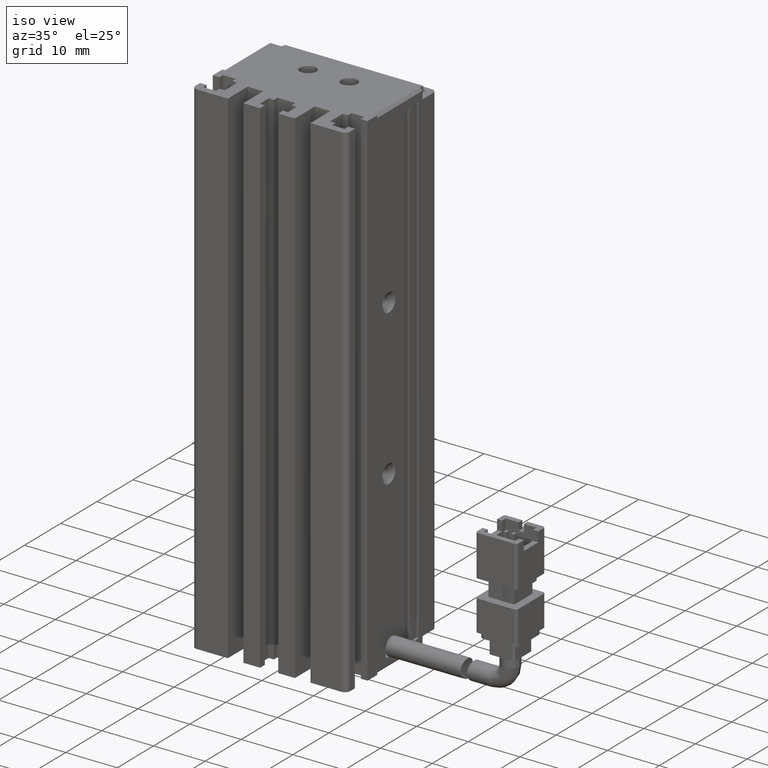
[diagram: clean part render]
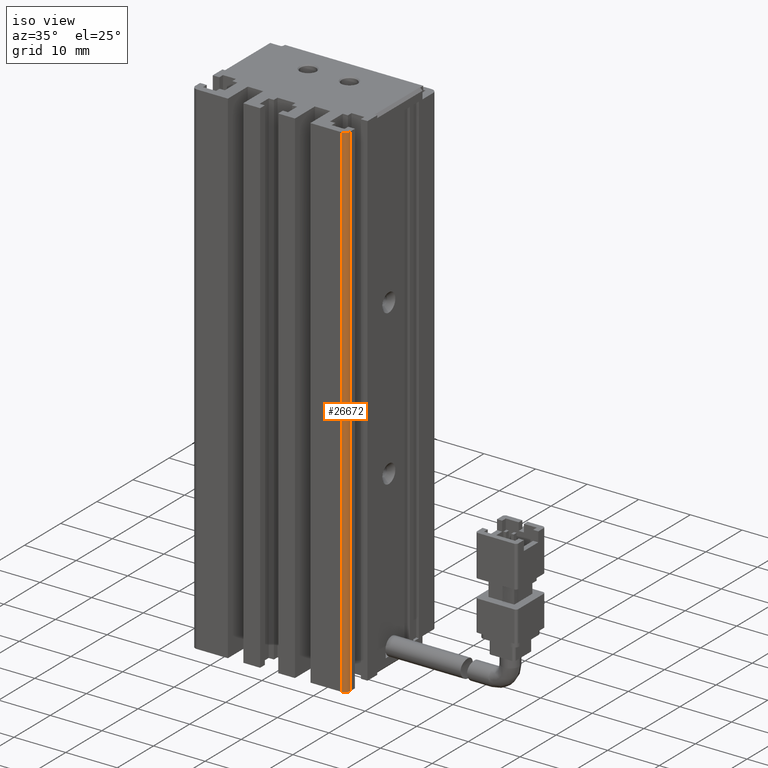
[diagram: same view with one face highlighted and labeled with its STEP entity id]
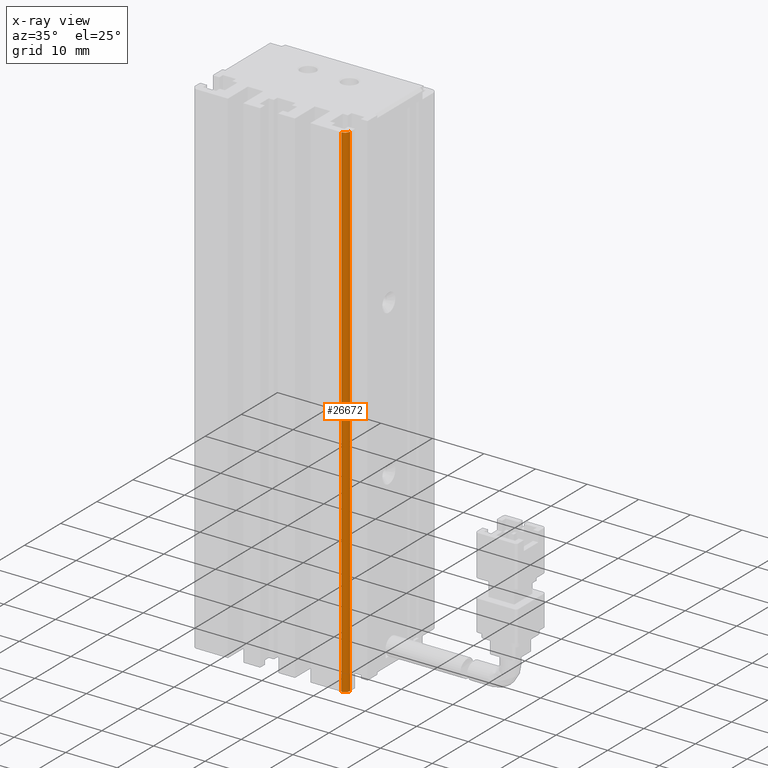
[diagram: x-ray of the same camera — body ghosted, the highlighted face saturated]
A machine part, iso view. The second image highlights one B-rep face of the part: STEP entity #26672.
The next image is the same camera in x-ray: the body ghosted, the highlighted face saturated — about 0% of this face is hidden behind the body in this view.
In plain terms, the highlighted cylindrical surface (edge-blend (fillet) strip) has radius 1 mm, axis along (-0, -0, -1).
Its self-contained STEP definition (entity closure, byte-faithful):
#1813 = VECTOR ( 'NONE', #10361, 1000.000000000000000 ) ;
#1869 = VERTEX_POINT ( 'NONE', #7064 ) ;
#2635 = ORIENTED_EDGE ( 'NONE', *, *, #29548, .T. ) ;
#5167 = CIRCLE ( 'NONE', #13048, 1.000000000000000900 ) ;
#5498 = VERTEX_POINT ( 'NONE', #14972 ) ;
#6105 = EDGE_CURVE ( 'NONE', #15011, #23882, #20256, .T. ) ;
#7064 = CARTESIAN_POINT ( 'NONE',  ( 55.92537974683542500, 11.69594479660387000, -66.00000000000000000 ) ) ;
#9187 = DIRECTION ( 'NONE',  ( -0.0000000000000000000, -0.0000000000000000000, -1.000000000000000000 ) ) ;
#10361 = DIRECTION ( 'NONE',  ( -0.0000000000000000000, -0.0000000000000000000, -1.000000000000000000 ) ) ;
#10416 = ORIENTED_EDGE ( 'NONE', *, *, #6105, .T. ) ;
#10991 = CARTESIAN_POINT ( 'NONE',  ( 54.92537974683542500, 10.69594479660386800, -66.00000000000000000 ) ) ;
#12926 = DIRECTION ( 'NONE',  ( 0.0000000000000000000, 0.0000000000000000000, 1.000000000000000000 ) ) ;
#13048 = AXIS2_PLACEMENT_3D ( 'NONE', #27346, #12926, #29794 ) ;
#13329 = FACE_OUTER_BOUND ( 'NONE', #24192, .T. ) ;
#14972 = CARTESIAN_POINT ( 'NONE',  ( 55.92537974683542500, 11.69594479660387000, -164.0000000000000000 ) ) ;
#15011 = VERTEX_POINT ( 'NONE', #10991 ) ;
#15373 = ORIENTED_EDGE ( 'NONE', *, *, #29705, .T. ) ;
#15943 = CYLINDRICAL_SURFACE ( 'NONE', #30397, 1.000000000000000900 ) ;
#16421 = DIRECTION ( 'NONE',  ( -0.0000000000000000000, -0.0000000000000000000, -1.000000000000000000 ) ) ;
#20256 = LINE ( 'NONE', #24778, #1813 ) ;
#20351 = AXIS2_PLACEMENT_3D ( 'NONE', #23596, #9187, #26012 ) ;
#20836 = CIRCLE ( 'NONE', #20351, 1.000000000000000900 ) ;
#22069 = VECTOR ( 'NONE', #28067, 1000.000000000000000 ) ;
#22319 = ORIENTED_EDGE ( 'NONE', *, *, #27531, .T. ) ;
#23575 = CARTESIAN_POINT ( 'NONE',  ( 54.92537974683542500, 11.69594479660387000, -66.00000000000000000 ) ) ;
#23596 = CARTESIAN_POINT ( 'NONE',  ( 54.92537974683542500, 11.69594479660387000, -66.00000000000000000 ) ) ;
#23689 = CARTESIAN_POINT ( 'NONE',  ( 54.92537974683542500, 10.69594479660386800, -164.0000000000000000 ) ) ;
#23882 = VERTEX_POINT ( 'NONE', #23689 ) ;
#24192 = EDGE_LOOP ( 'NONE', ( #22319, #10416, #2635, #15373 ) ) ;
#24645 = DIRECTION ( 'NONE',  ( -1.000000000000000000, 0.0000000000000000000, 0.0000000000000000000 ) ) ;
#24778 = CARTESIAN_POINT ( 'NONE',  ( 54.92537974683542500, 10.69594479660386800, -66.00000000000000000 ) ) ;
#25646 = CARTESIAN_POINT ( 'NONE',  ( 55.92537974683542500, 11.69594479660387000, -66.00000000000000000 ) ) ;
#26012 = DIRECTION ( 'NONE',  ( -1.000000000000000000, 0.0000000000000000000, 0.0000000000000000000 ) ) ;
#26672 = ADVANCED_FACE ( 'NONE', ( #13329 ), #15943, .T. ) ;
#27346 = CARTESIAN_POINT ( 'NONE',  ( 54.92537974683542500, 11.69594479660387000, -164.0000000000000000 ) ) ;
#27531 = EDGE_CURVE ( 'NONE', #1869, #15011, #20836, .T. ) ;
#28067 = DIRECTION ( 'NONE',  ( 0.0000000000000000000, 0.0000000000000000000, 1.000000000000000000 ) ) ;
#28461 = LINE ( 'NONE', #25646, #22069 ) ;
#29548 = EDGE_CURVE ( 'NONE', #23882, #5498, #5167, .T. ) ;
#29705 = EDGE_CURVE ( 'NONE', #5498, #1869, #28461, .T. ) ;
#29794 = DIRECTION ( 'NONE',  ( -1.000000000000000000, 0.0000000000000000000, 0.0000000000000000000 ) ) ;
#30397 = AXIS2_PLACEMENT_3D ( 'NONE', #23575, #16421, #24645 ) ;